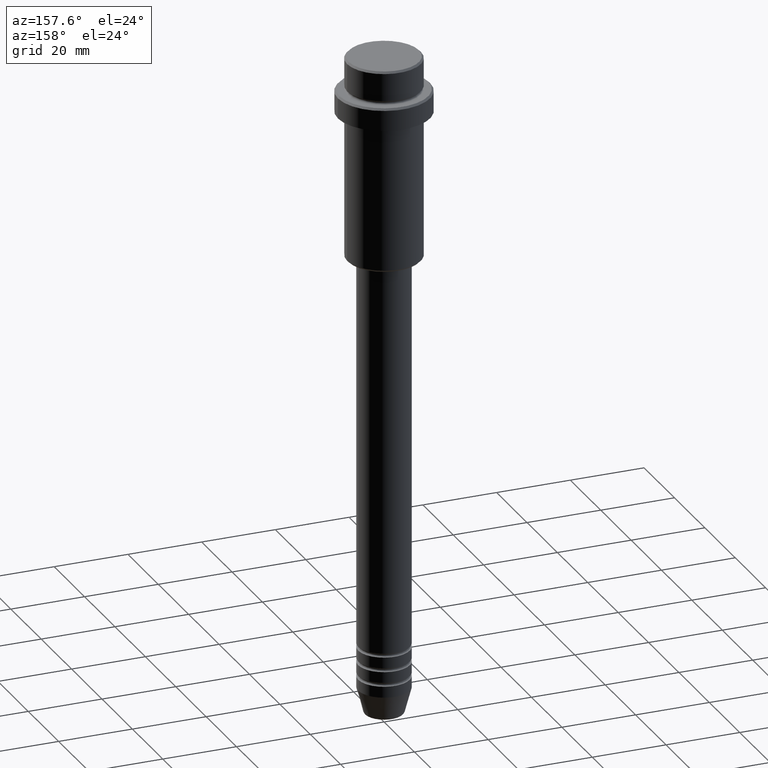
[diagram: clean part render]
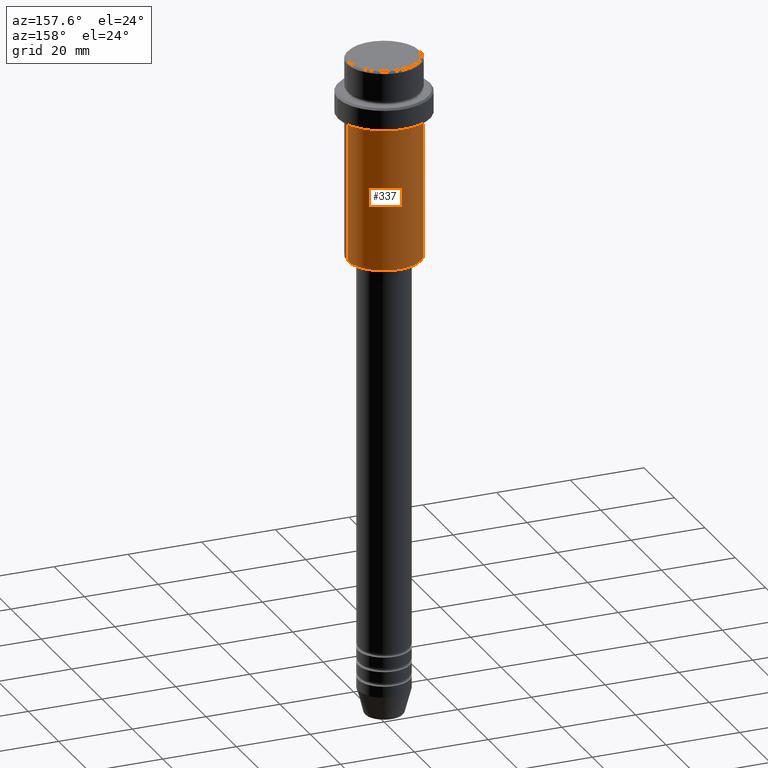
[diagram: same view with one face highlighted and labeled with its STEP entity id]
A machine part, auxiliary view. The second image highlights one B-rep face of the part: STEP entity #337.
In plain terms, the highlighted cylindrical surface (partial cylindrical patch) has radius 10 mm, axis along (-0, -0, 1).
Its self-contained STEP definition (entity closure, byte-faithful):
#50 = VERTEX_POINT ( 'NONE', #1322 ) ;
#54 = CYLINDRICAL_SURFACE ( 'NONE', #1138, 9.999999999999998224 ) ;
#75 = VERTEX_POINT ( 'NONE', #1333 ) ;
#82 = EDGE_LOOP ( 'NONE', ( #105, #1165, #350, #586 ) ) ;
#105 = ORIENTED_EDGE ( 'NONE', *, *, #194, .T. ) ;
#194 = EDGE_CURVE ( 'NONE', #934, #1342, #284, .T. ) ;
#208 = CIRCLE ( 'NONE', #281, 9.999999999999998224 ) ;
#244 = VECTOR ( 'NONE', #415, 1000.000000000000000 ) ;
#281 = AXIS2_PLACEMENT_3D ( 'NONE', #445, #359, #797 ) ;
#284 = CIRCLE ( 'NONE', #524, 9.999999999999998224 ) ;
#308 = CARTESIAN_POINT ( 'NONE',  ( 9.999999999999998224, 0.000000000000000000, 0.000000000000000000 ) ) ;
#337 = ADVANCED_FACE ( 'NONE', ( #919 ), #54, .T. ) ;
#350 = ORIENTED_EDGE ( 'NONE', *, *, #675, .F. ) ;
#359 = DIRECTION ( 'NONE',  ( -0.000000000000000000, -0.000000000000000000, 1.000000000000000000 ) ) ;
#415 = DIRECTION ( 'NONE',  ( -0.000000000000000000, -0.000000000000000000, 1.000000000000000000 ) ) ;
#421 = CARTESIAN_POINT ( 'NONE',  ( -9.999999999999998224, 1.224646799147353059E-15, 0.000000000000000000 ) ) ;
#445 = CARTESIAN_POINT ( 'NONE',  ( 0.000000000000000000, 0.000000000000000000, -16.00000000000000000 ) ) ;
#524 = AXIS2_PLACEMENT_3D ( 'NONE', #1067, #610, #1058 ) ;
#529 = LINE ( 'NONE', #308, #1195 ) ;
#586 = ORIENTED_EDGE ( 'NONE', *, *, #937, .F. ) ;
#610 = DIRECTION ( 'NONE',  ( -0.000000000000000000, -0.000000000000000000, 1.000000000000000000 ) ) ;
#675 = EDGE_CURVE ( 'NONE', #50, #75, #208, .T. ) ;
#793 = DIRECTION ( 'NONE',  ( 1.000000000000000000, 0.000000000000000000, 0.000000000000000000 ) ) ;
#797 = DIRECTION ( 'NONE',  ( 1.000000000000000000, 0.000000000000000000, 0.000000000000000000 ) ) ;
#855 = EDGE_CURVE ( 'NONE', #1342, #75, #861, .T. ) ;
#861 = LINE ( 'NONE', #421, #244 ) ;
#907 = CARTESIAN_POINT ( 'NONE',  ( 0.000000000000000000, 0.000000000000000000, 0.000000000000000000 ) ) ;
#919 = FACE_OUTER_BOUND ( 'NONE', #82, .T. ) ;
#934 = VERTEX_POINT ( 'NONE', #1396 ) ;
#937 = EDGE_CURVE ( 'NONE', #934, #50, #529, .T. ) ;
#1024 = CARTESIAN_POINT ( 'NONE',  ( -9.999999999999998224, 1.224646799147353059E-15, -54.49999999999999289 ) ) ;
#1058 = DIRECTION ( 'NONE',  ( -1.000000000000000000, 0.000000000000000000, 0.000000000000000000 ) ) ;
#1067 = CARTESIAN_POINT ( 'NONE',  ( 0.000000000000000000, 0.000000000000000000, -54.49999999999999289 ) ) ;
#1138 = AXIS2_PLACEMENT_3D ( 'NONE', #907, #1365, #793 ) ;
#1165 = ORIENTED_EDGE ( 'NONE', *, *, #855, .T. ) ;
#1189 = DIRECTION ( 'NONE',  ( -0.000000000000000000, -0.000000000000000000, 1.000000000000000000 ) ) ;
#1195 = VECTOR ( 'NONE', #1189, 1000.000000000000000 ) ;
#1322 = CARTESIAN_POINT ( 'NONE',  ( 9.999999999999998224, 0.000000000000000000, -16.00000000000000000 ) ) ;
#1333 = CARTESIAN_POINT ( 'NONE',  ( -9.999999999999998224, 1.224646799147353059E-15, -16.00000000000000000 ) ) ;
#1342 = VERTEX_POINT ( 'NONE', #1024 ) ;
#1365 = DIRECTION ( 'NONE',  ( -0.000000000000000000, -0.000000000000000000, 1.000000000000000000 ) ) ;
#1396 = CARTESIAN_POINT ( 'NONE',  ( 9.999999999999998224, 0.000000000000000000, -54.49999999999999289 ) ) ;